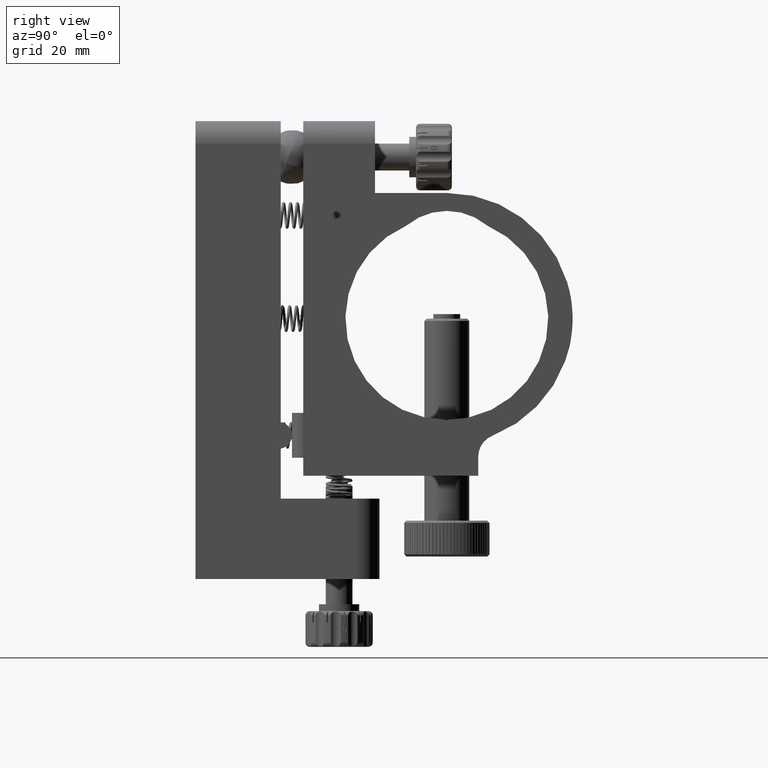
[diagram: clean part render]
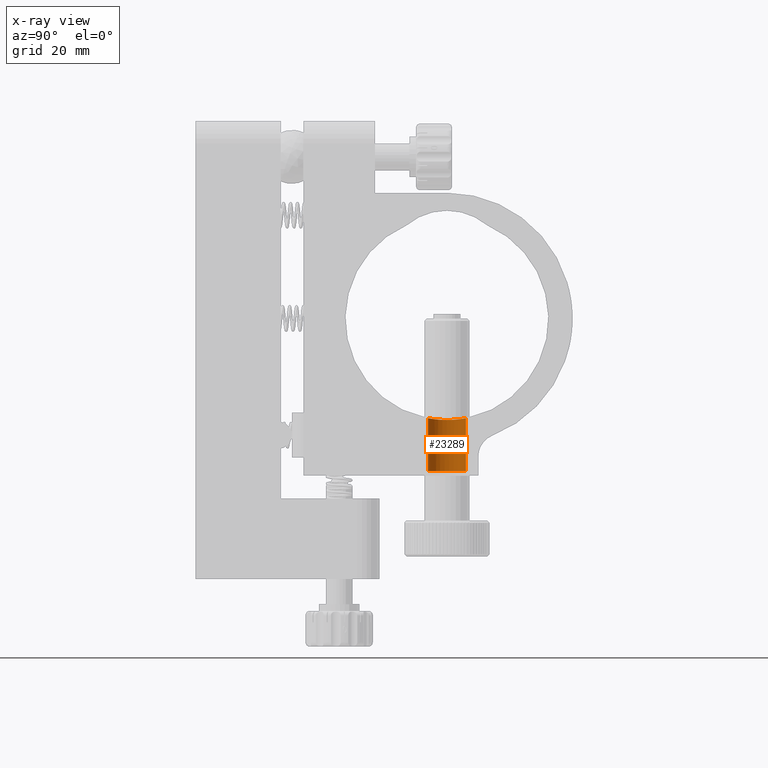
[diagram: x-ray — body ghosted, one internal face saturated and labeled with its STEP entity id]
A machine part, right view, then the same camera in x-ray: the body is ghosted and one INTERNAL B-rep face — a face not visible from any outside direction — is saturated and labeled: STEP entity #23289.
In plain terms, the highlighted cylindrical surface (edge-blend (fillet) strip) has radius 4.25 mm, axis along (-0, -0, -1).
Its self-contained STEP definition (entity closure, byte-faithful):
#3133 = CARTESIAN_POINT ( 'NONE',  ( -4.032559819079989600, 54.62933155733939800, -22.55987521291537600 ) ) ;
#3312 = CARTESIAN_POINT ( 'NONE',  ( -4.113111557162672400, 54.89449205609441400, -22.57459453200042900 ) ) ;
#3458 = DIRECTION ( 'NONE',  ( -0.0000000000000000000, -5.693451408334136400E-015, -1.000000000000000000 ) ) ;
#4056 = VERTEX_POINT ( 'NONE', #20063 ) ;
#4954 = CARTESIAN_POINT ( 'NONE',  ( -2.810896558220427700, 59.19967007133530500, -22.37322273159400200 ) ) ;
#5352 = EDGE_CURVE ( 'NONE', #20144, #44542, #25817, .T. ) ;
#5363 = CARTESIAN_POINT ( 'NONE',  ( 7.213771624776588500E-015, 60.24999999999965900, -22.19679030851094800 ) ) ;
#5914 = DIRECTION ( 'NONE',  ( -0.0000000000000000000, -5.693451408334136400E-015, -1.000000000000000000 ) ) ;
#8288 = VERTEX_POINT ( 'NONE', #9624 ) ;
#9318 = CARTESIAN_POINT ( 'NONE',  ( -3.688348277126579900, 58.12995187983752700, -22.50061950149664000 ) ) ;
#9624 = CARTESIAN_POINT ( 'NONE',  ( 8.193398380841928800E-015, 51.74999999999960900, -34.00000000000023400 ) ) ;
#9683 = CARTESIAN_POINT ( 'NONE',  ( -1.102472527840275400, 60.11388280057624900, -22.22248884137719900 ) ) ;
#11163 = LINE ( 'NONE', #16230, #28603 ) ;
#11997 = CARTESIAN_POINT ( 'NONE',  ( -1.884278467364153100, 52.18040221675740000, -22.27515127614113100 ) ) ;
#12172 = CARTESIAN_POINT ( 'NONE',  ( -4.222098093493668700, 55.43989091721324800, -22.59470610372353100 ) ) ;
#12537 = CARTESIAN_POINT ( 'NONE',  ( 7.672923491204299700E-015, 55.99999999999959500, -35.00000000000028400 ) ) ;
#13282 = EDGE_LOOP ( 'NONE', ( #24394, #44133, #47529, #41967, #54442 ) ) ;
#14192 = CARTESIAN_POINT ( 'NONE',  ( -1.372822264010407500, 60.03180513012062400, -22.23772283858699300 ) ) ;
#15524 = EDGE_CURVE ( 'NONE', #8288, #4056, #40580, .T. ) ;
#16113 = CARTESIAN_POINT ( 'NONE',  ( -1.105596994433070800, 51.88689408517588200, -22.22263347242475000 ) ) ;
#16230 = CARTESIAN_POINT ( 'NONE',  ( 8.193398380841924100E-015, 51.74999999999960200, -35.00000000000026300 ) ) ;
#16299 = CARTESIAN_POINT ( 'NONE',  ( -4.249999999999992000, 55.72216346672701100, -22.60000000000010100 ) ) ;
#16372 = DIRECTION ( 'NONE',  ( 0.0000000000000000000, -5.693451408334125300E-015, -1.000000000000000000 ) ) ;
#17769 = CARTESIAN_POINT ( 'NONE',  ( -1.887327520408308600, 59.81812629525781900, -22.27540529926541200 ) ) ;
#18129 = CARTESIAN_POINT ( 'NONE',  ( -3.377663190365505200, 58.59460968090687800, -22.45178330479114600 ) ) ;
#18748 = B_SPLINE_CURVE_WITH_KNOTS ( 'NONE', 3,
 ( #55078, #16299, #12172, #3312, #3133, #33376, #37852, #54717, #29067, #28698, #33199, #20598, #11997, #41991, #16113, #54350, #24918, #37316 ),
 .UNSPECIFIED., .F., .F.,
 ( 4, 2, 2, 2, 2, 2, 2, 2, 4 ),
 ( 0.006660174130079574300, 0.007492288067534073500, 0.008324402004988571900, 0.009156515942443070300, 0.009988629879897568600, 0.01082074381735206700, 0.01165285775480656500, 0.01248497169226106400, 0.01331708562971556200 ),
 .UNSPECIFIED. ) ;
#19349 = VERTEX_POINT ( 'NONE', #33106 ) ;
#20063 = CARTESIAN_POINT ( 'NONE',  ( 7.672923491204299700E-015, 60.24999999999958800, -34.00000000000027000 ) ) ;
#20144 = VERTEX_POINT ( 'NONE', #5363 ) ;
#20598 = CARTESIAN_POINT ( 'NONE',  ( -2.133079069945617200, 52.31368150349494100, -22.29787627368817500 ) ) ;
#22081 = CARTESIAN_POINT ( 'NONE',  ( -2.131246050831864000, 59.68746126017760600, -22.29769125045618200 ) ) ;
#23289 = ADVANCED_FACE ( 'NONE', ( #47588 ), #50911, .F. ) ;
#24394 = ORIENTED_EDGE ( 'NONE', *, *, #5352, .T. ) ;
#24404 = CARTESIAN_POINT ( 'NONE',  ( -4.249999999999982200, 55.99999999999979400, -22.60000000000009700 ) ) ;
#24918 = CARTESIAN_POINT ( 'NONE',  ( -0.2776413905731343600, 51.74999999999968000, -22.19679030851089500 ) ) ;
#25817 = B_SPLINE_CURVE_WITH_KNOTS ( 'NONE', 3,
 ( #31078, #52230, #47736, #9683, #14192, #17769, #22081, #35574, #4954, #34855, #18129, #9318, #35203, #51874, #39688, #39332, #43806, #43997 ),
 .UNSPECIFIED., .F., .F.,
 ( 4, 2, 2, 2, 2, 2, 2, 2, 4 ),
 ( 6.573037869964976100E-019, 0.0008325217662599473300, 0.001665043532519894000, 0.002497565298779840900, 0.003330087065039787600, 0.004162608831299734700, 0.004995130597559681000, 0.005827652363819627200, 0.006660174130079574300 ),
 .UNSPECIFIED. ) ;
#27703 = CARTESIAN_POINT ( 'NONE',  ( 7.672923491204299700E-015, 60.24999999999958100, -35.00000000000029800 ) ) ;
#28387 = CARTESIAN_POINT ( 'NONE',  ( 7.672923491204299700E-015, 55.99999999999960200, -34.00000000000025600 ) ) ;
#28603 = VECTOR ( 'NONE', #42099, 1000.000000000000000 ) ;
#28698 = CARTESIAN_POINT ( 'NONE',  ( -2.806739191257921800, 52.79643824538642600, -22.37268245647748400 ) ) ;
#29067 = CARTESIAN_POINT ( 'NONE',  ( -3.202048900353005000, 53.19153500233422700, -22.42570517443953500 ) ) ;
#31078 = CARTESIAN_POINT ( 'NONE',  ( 7.213771624776588500E-015, 60.24999999999965900, -22.19679030851094800 ) ) ;
#33106 = CARTESIAN_POINT ( 'NONE',  ( 8.193397807220716600E-015, 51.74999999999967300, -22.19679030851089200 ) ) ;
#33199 = CARTESIAN_POINT ( 'NONE',  ( -2.592783350558748100, 52.62117699880853600, -22.34653855748134900 ) ) ;
#33337 = EDGE_CURVE ( 'NONE', #19349, #8288, #11163, .T. ) ;
#33376 = CARTESIAN_POINT ( 'NONE',  ( -3.818874952809689500, 54.11414084063331100, -22.52266051853227300 ) ) ;
#34855 = CARTESIAN_POINT ( 'NONE',  ( -3.201960825484680800, 58.80828682624763100, -22.42571089317879200 ) ) ;
#35203 = CARTESIAN_POINT ( 'NONE',  ( -3.819918422727020400, 57.88343995472349200, -22.52284125350652000 ) ) ;
#35574 = CARTESIAN_POINT ( 'NONE',  ( -2.592856769585113200, 59.37885691424097000, -22.34653735143471600 ) ) ;
#37034 = AXIS2_PLACEMENT_3D ( 'NONE', #28387, #16372, #41680 ) ;
#37316 = CARTESIAN_POINT ( 'NONE',  ( 8.193397807220716600E-015, 51.74999999999967300, -22.19679030851089200 ) ) ;
#37852 = CARTESIAN_POINT ( 'NONE',  ( -3.685983674367891500, 53.86635097336957800, -22.50024272069795500 ) ) ;
#39332 = CARTESIAN_POINT ( 'NONE',  ( -4.222992320990350400, 56.55425193128908000, -22.59487299472667500 ) ) ;
#39688 = CARTESIAN_POINT ( 'NONE',  ( -4.113813403760302900, 57.10335788641892700, -22.57472219597935800 ) ) ;
#40580 = CIRCLE ( 'NONE', #37034, 4.249999999999990200 ) ;
#41680 = DIRECTION ( 'NONE',  ( 0.0000000000000000000, -1.000000000000000000, 4.898042755699231000E-015 ) ) ;
#41967 = ORIENTED_EDGE ( 'NONE', *, *, #15524, .T. ) ;
#41991 = CARTESIAN_POINT ( 'NONE',  ( -1.370493275340674000, 51.96743496635577500, -22.23758329608128600 ) ) ;
#42099 = DIRECTION ( 'NONE',  ( -0.0000000000000000000, -5.693451408334136400E-015, -1.000000000000000000 ) ) ;
#43448 = AXIS2_PLACEMENT_3D ( 'NONE', #12537, #3458, #50366 ) ;
#43806 = CARTESIAN_POINT ( 'NONE',  ( -4.249999999999975100, 56.27797270421788800, -22.60000000000010100 ) ) ;
#43997 = CARTESIAN_POINT ( 'NONE',  ( -4.249999999999982200, 55.99999999999979400, -22.60000000000009700 ) ) ;
#44133 = ORIENTED_EDGE ( 'NONE', *, *, #46437, .T. ) ;
#44542 = VERTEX_POINT ( 'NONE', #24404 ) ;
#44895 = LINE ( 'NONE', #27703, #46239 ) ;
#46239 = VECTOR ( 'NONE', #5914, 1000.000000000000000 ) ;
#46437 = EDGE_CURVE ( 'NONE', #44542, #19349, #18748, .T. ) ;
#46868 = EDGE_CURVE ( 'NONE', #20144, #4056, #44895, .T. ) ;
#47529 = ORIENTED_EDGE ( 'NONE', *, *, #33337, .T. ) ;
#47588 = FACE_OUTER_BOUND ( 'NONE', #13282, .T. ) ;
#47736 = CARTESIAN_POINT ( 'NONE',  ( -0.5582709470878395300, 60.22229924580877000, -22.20214474056174900 ) ) ;
#50366 = DIRECTION ( 'NONE',  ( 0.0000000000000000000, 1.000000000000000000, -4.898042755699231000E-015 ) ) ;
#50911 = CYLINDRICAL_SURFACE ( 'NONE', #43448, 4.249999999999990200 ) ;
#51874 = CARTESIAN_POINT ( 'NONE',  ( -4.031952055813453800, 57.37203696705304200, -22.55977036130341100 ) ) ;
#52230 = CARTESIAN_POINT ( 'NONE',  ( -0.2815529936652832500, 60.24999999999965900, -22.19679030851094500 ) ) ;
#54350 = CARTESIAN_POINT ( 'NONE',  ( -0.5596630748390462000, 51.77782494165359900, -22.20216918440565100 ) ) ;
#54442 = ORIENTED_EDGE ( 'NONE', *, *, #46868, .F. ) ;
#54717 = CARTESIAN_POINT ( 'NONE',  ( -3.378497484337179100, 53.40679955173629200, -22.45191956368736500 ) ) ;
#55078 = CARTESIAN_POINT ( 'NONE',  ( -4.249999999999982200, 55.99999999999979400, -22.60000000000009700 ) ) ;